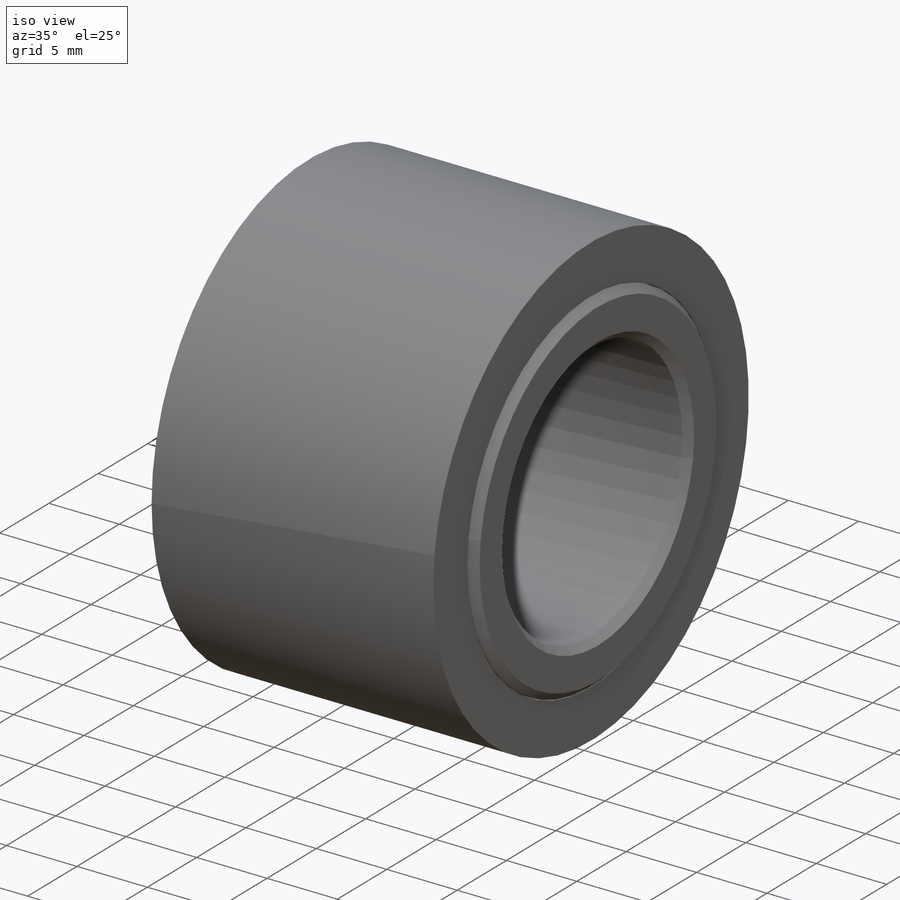
[diagram: iso view]
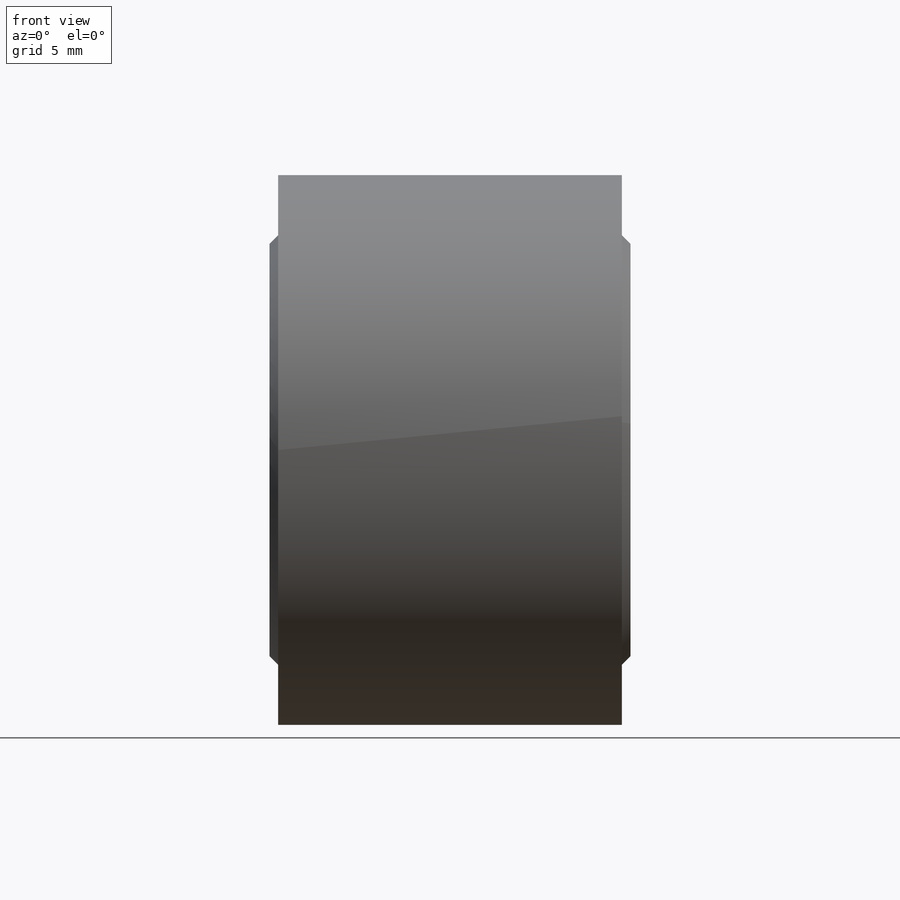
[diagram: front view]
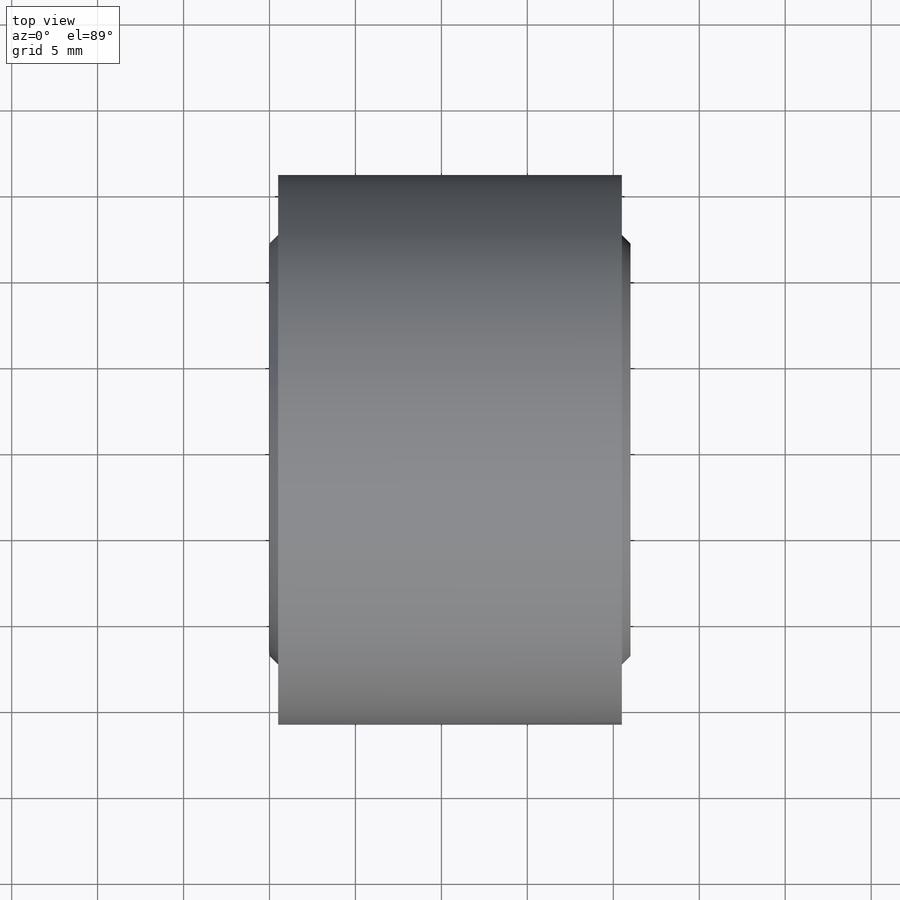
[diagram: top view]
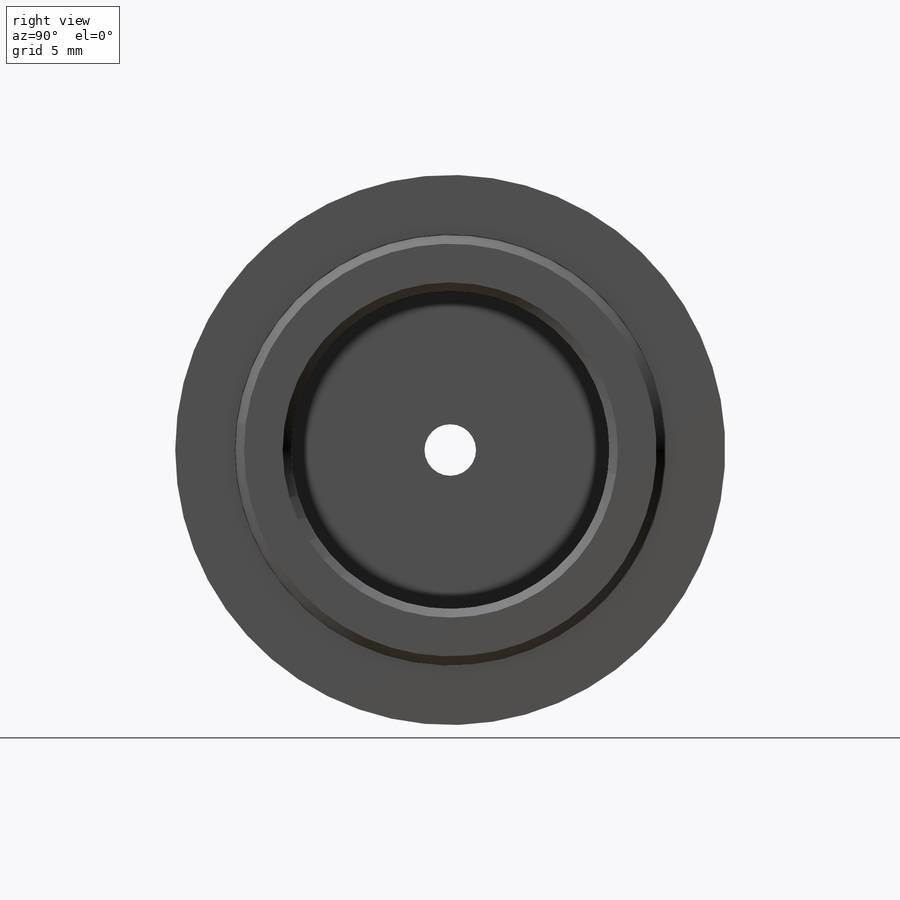
[diagram: right view]
SOLIDWORKS PART (.sldprt)
format: sldprt  version: not decoded by parser v0  size: 264,704 bytes
history: native  units: mm
features: sketch x5, plane x4, revolve x2, material x1, cut_extrude x1, hole x1, thread x1, chamfer x1 (+9 scaffold rows collapsed)
feature tree (25):
  scaffold x9  (default folders/planes/origin — collapsed)
  material  "Material <não especificado>"
  plane  "Plano frontal"
  plane  "Plano superior"
  plane  "Plano direito"
  sketch  "Esboço2"  dims[D1=18.5mm D2=25.0mm D3=1.5mm D4=18.0mm D5=14.0mm D6=21.0mm]
  revolve  "Revolução1"  Angle=360deg
  sketch  "Esboço3"  dims[D1=3.0mm]
  cut_extrude  "Corte-extrusão1"  [1 undecoded]
  plane  "Plano1"
  hole  "Furo roscado de M41"  Diameter=3.3mm Depth=9.5mm
  sketch  "Esboço5"  dims[D1=4.0mm]
  sketch  "Esboço4"  dims[hole-wizard template sketch: 60 standard entries collapsed; hole parameters kept: c18.Thru Tap Drill Depth=9.5mm]
  thread  "Rosca de furo1"  Diameter=4mm  [1 undecoded]
  chamfer  "Chanfro1"  Distance=0.5mm Angle=45deg
  sketch  "Esboço6"  dims[D1=32.0mm D2=0.1mm D3=0.05mm D4=0.05mm D5=0.05mm D6=20.0mm]
  revolve  "Revolução2"  Angle=360deg
decode coverage: 10 of 11 modeling features carry decoded parameters
note: ~ marks probable driven/reference dimensions
note: 2 parameter values undecoded
note: suppression state not decoded; provenance and decode notes live in map.json
